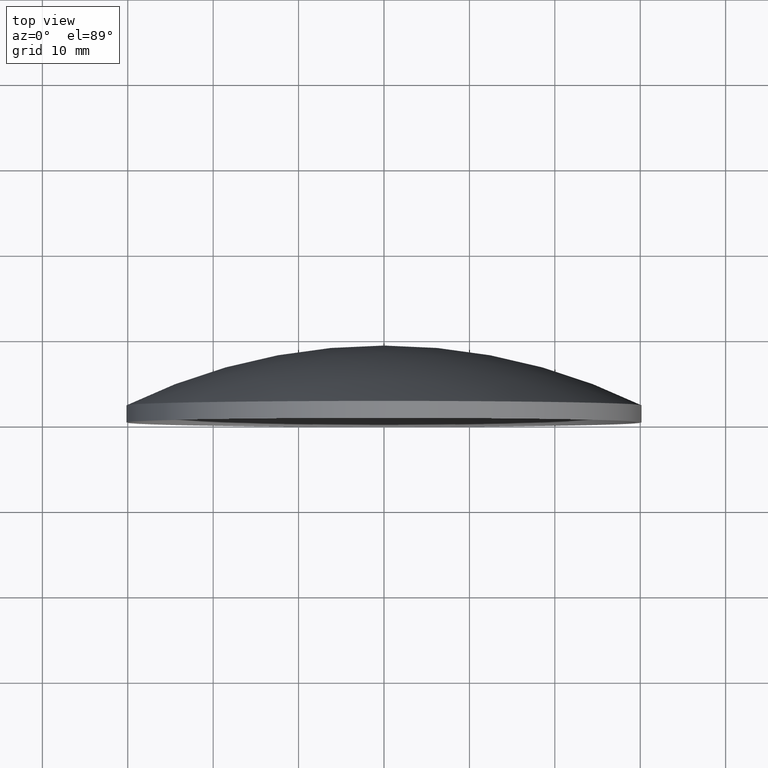
[diagram: clean part render]
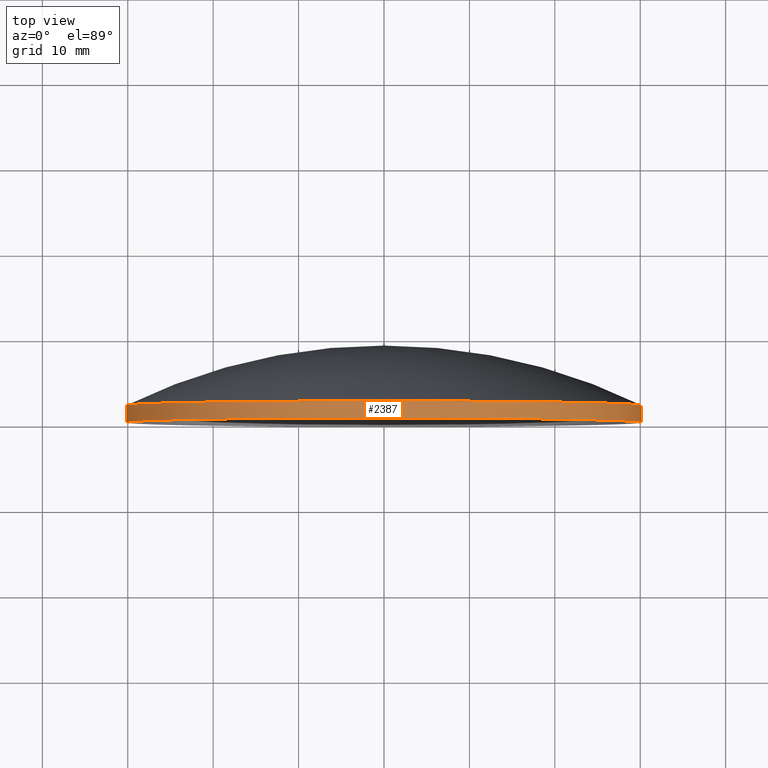
[diagram: same view with one face highlighted and labeled with its STEP entity id]
A machine part, top view. The second image highlights one B-rep face of the part: STEP entity #2387.
In plain terms, the highlighted cylindrical surface (partial cylindrical patch) has radius 30.15 mm, axis along (-0, -1, -0).
Its self-contained STEP definition (entity closure, byte-faithful):
#504 = CARTESIAN_POINT ( 'NONE',  ( 30.15000000000005900, 6.999999999999713100, 0.0000000000000000000 ) ) ;
#939 = CARTESIAN_POINT ( 'NONE',  ( 30.14999999999999900, -2.432787131429308200E-015, 0.0000000000000000000 ) ) ;
#997 = AXIS2_PLACEMENT_3D ( 'NONE', #6189, #3397, #8225 ) ;
#1036 = ORIENTED_EDGE ( 'NONE', *, *, #11968, .T. ) ;
#1905 = CARTESIAN_POINT ( 'NONE',  ( -30.15000000000009800, 2.000000000000553300, 3.692310099429275900E-015 ) ) ;
#2093 = ORIENTED_EDGE ( 'NONE', *, *, #4467, .F. ) ;
#2350 = CARTESIAN_POINT ( 'NONE',  ( -30.15000000000005900, 7.000000000000271800, 3.692310099429276700E-015 ) ) ;
#2387 = ADVANCED_FACE ( 'NONE', ( #10204 ), #11117, .T. ) ;
#2558 = VERTEX_POINT ( 'NONE', #3342 ) ;
#2793 = CARTESIAN_POINT ( 'NONE',  ( 0.0000000000000000000, 6.999999999999992000, 0.0000000000000000000 ) ) ;
#3008 = CIRCLE ( 'NONE', #997, 30.15000000000005200 ) ;
#3125 = EDGE_LOOP ( 'NONE', ( #12498, #1036, #2093, #9153 ) ) ;
#3342 = CARTESIAN_POINT ( 'NONE',  ( -30.15000000000013400, 5.558095759680309200E-013, 3.692310099429279100E-015 ) ) ;
#3397 = DIRECTION ( 'NONE',  ( -9.257750631831822700E-015, -1.000000000000000000, -0.0000000000000000000 ) ) ;
#4181 = DIRECTION ( 'NONE',  ( 1.000000000000000000, -9.257750631831821100E-015, 0.0000000000000000000 ) ) ;
#4467 = EDGE_CURVE ( 'NONE', #12466, #2558, #4486, .T. ) ;
#4486 = CIRCLE ( 'NONE', #12002, 30.15000000000006600 ) ;
#4591 = CARTESIAN_POINT ( 'NONE',  ( 30.15000000000000600, 1.999999999999994900, 0.0000000000000000000 ) ) ;
#5751 = DIRECTION ( 'NONE',  ( -9.257750631831822700E-015, -1.000000000000000000, -0.0000000000000000000 ) ) ;
#6189 = CARTESIAN_POINT ( 'NONE',  ( -4.628875315915650700E-014, 2.000000000000274000, 0.0000000000000000000 ) ) ;
#6386 = VECTOR ( 'NONE', #9436, 1000.000000000000000 ) ;
#7362 = DIRECTION ( 'NONE',  ( -9.257750631831822700E-015, -1.000000000000000000, -0.0000000000000000000 ) ) ;
#7599 = EDGE_CURVE ( 'NONE', #9811, #12466, #10617, .T. ) ;
#7741 = DIRECTION ( 'NONE',  ( 1.000000000000000000, -9.263365825282434700E-015, 0.0000000000000000000 ) ) ;
#7791 = LINE ( 'NONE', #2350, #6386 ) ;
#8225 = DIRECTION ( 'NONE',  ( 1.000000000000000000, -9.263365825282436300E-015, 0.0000000000000000000 ) ) ;
#9153 = ORIENTED_EDGE ( 'NONE', *, *, #7599, .F. ) ;
#9436 = DIRECTION ( 'NONE',  ( -9.257750631831822700E-015, -1.000000000000000000, -0.0000000000000000000 ) ) ;
#9588 = AXIS2_PLACEMENT_3D ( 'NONE', #2793, #5751, #7741 ) ;
#9811 = VERTEX_POINT ( 'NONE', #4591 ) ;
#10010 = CARTESIAN_POINT ( 'NONE',  ( -6.480425442282013300E-014, 2.766883944183007300E-013, 0.0000000000000000000 ) ) ;
#10204 = FACE_OUTER_BOUND ( 'NONE', #3125, .T. ) ;
#10617 = LINE ( 'NONE', #504, #11217 ) ;
#11117 = CYLINDRICAL_SURFACE ( 'NONE', #9588, 30.15000000000005900 ) ;
#11217 = VECTOR ( 'NONE', #7362, 1000.000000000000000 ) ;
#11637 = VERTEX_POINT ( 'NONE', #1905 ) ;
#11968 = EDGE_CURVE ( 'NONE', #11637, #2558, #7791, .T. ) ;
#12002 = AXIS2_PLACEMENT_3D ( 'NONE', #10010, #12044, #4181 ) ;
#12044 = DIRECTION ( 'NONE',  ( -9.257750631831822700E-015, -1.000000000000000000, -0.0000000000000000000 ) ) ;
#12466 = VERTEX_POINT ( 'NONE', #939 ) ;
#12498 = ORIENTED_EDGE ( 'NONE', *, *, #12655, .T. ) ;
#12655 = EDGE_CURVE ( 'NONE', #9811, #11637, #3008, .T. ) ;